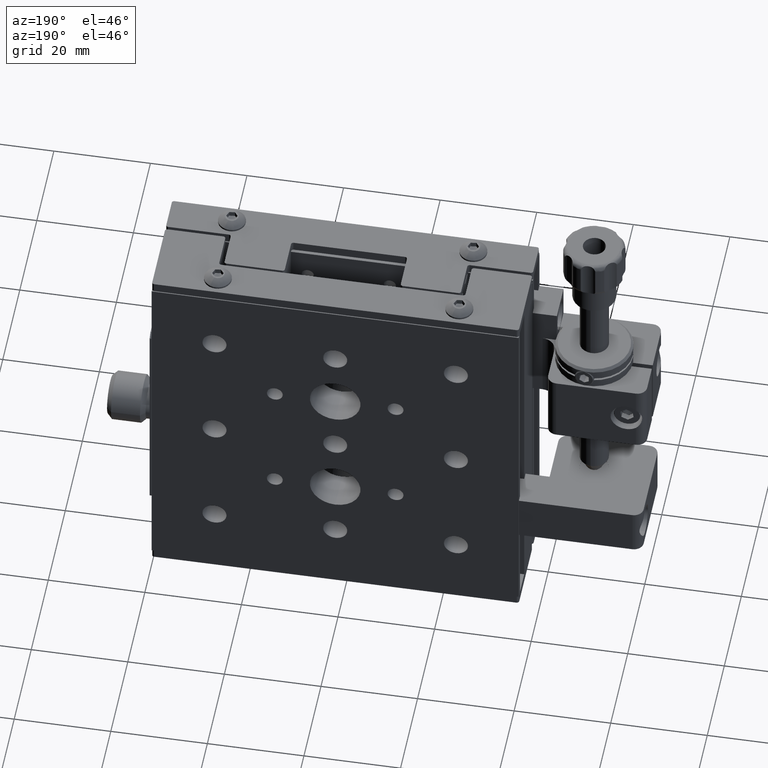
[diagram: clean part render]
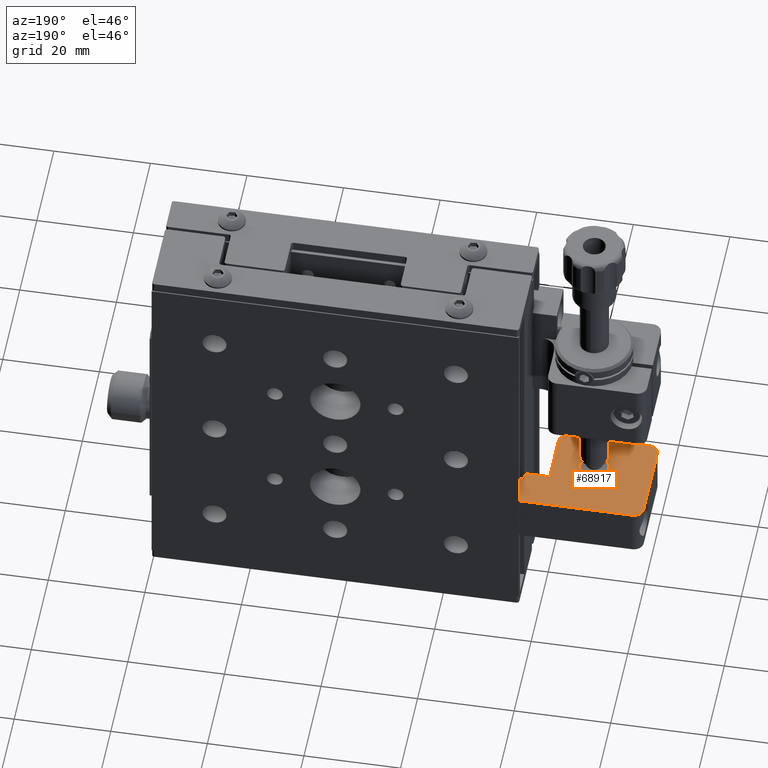
[diagram: same view with one face highlighted and labeled with its STEP entity id]
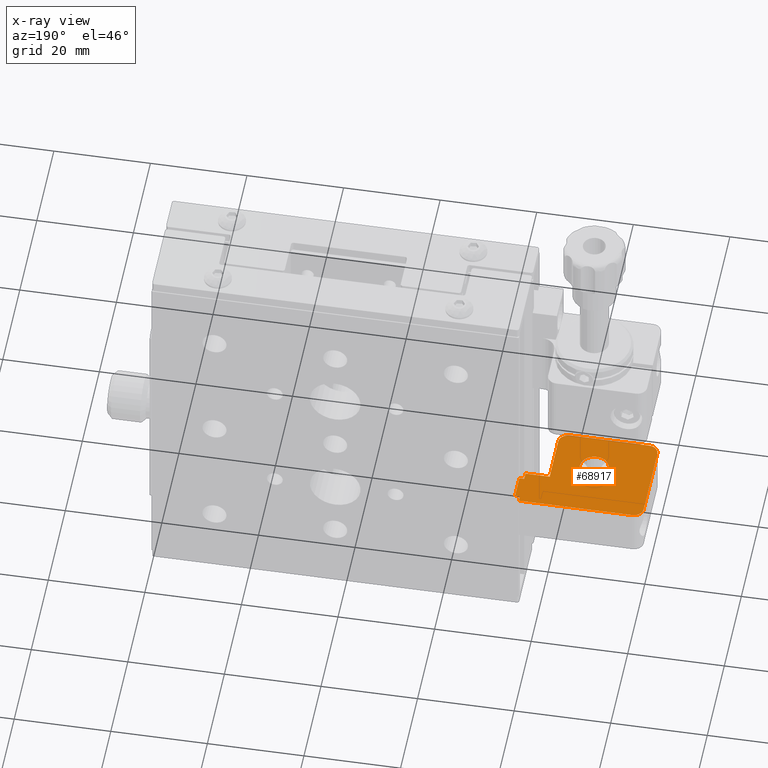
[diagram: x-ray of the same camera — body ghosted, the highlighted face saturated]
A machine part, auxiliary view. The second image highlights one B-rep face of the part: STEP entity #68917.
The next image is the same camera in x-ray: the body ghosted, the highlighted face saturated — about 1% of this face is hidden behind the body in this view.
In plain terms, the highlighted planar face has unit normal (-0, -0, 1).
Its self-contained STEP definition (entity closure, byte-faithful):
#762 = CARTESIAN_POINT ( 'NONE',  ( -21.29442417223149100, 5.606442215610566200, 101.1000000000000500 ) ) ;
#1313 = CIRCLE ( 'NONE', #5059, 1.999999999999994900 ) ;
#2289 = ORIENTED_EDGE ( 'NONE', *, *, #43231, .F. ) ;
#2669 = AXIS2_PLACEMENT_3D ( 'NONE', #48181, #14084, #65845 ) ;
#2849 = AXIS2_PLACEMENT_3D ( 'NONE', #49611, #61058, #26977 ) ;
#4611 = ORIENTED_EDGE ( 'NONE', *, *, #54387, .T. ) ;
#5059 = AXIS2_PLACEMENT_3D ( 'NONE', #63812, #18260, #6259 ) ;
#5143 = CARTESIAN_POINT ( 'NONE',  ( -39.79442417223148700, 13.40644221561057500, 101.1000000000000500 ) ) ;
#5286 = DIRECTION ( 'NONE',  ( -1.000000000000000000, -1.203058634489234800E-016, -2.289316593276503000E-017 ) ) ;
#5798 = CARTESIAN_POINT ( 'NONE',  ( -16.29442417223157600, 13.40644221561057800, 101.1000000000000500 ) ) ;
#6259 = DIRECTION ( 'NONE',  ( -1.000000000000000000, 0.0000000000000000000, 0.0000000000000000000 ) ) ;
#8567 = VERTEX_POINT ( 'NONE', #52880 ) ;
#8688 = VECTOR ( 'NONE', #58439, 1000.000000000000000 ) ;
#9293 = CARTESIAN_POINT ( 'NONE',  ( -39.79442417223148700, 11.40644221561057500, 101.1000000000000500 ) ) ;
#9618 = CARTESIAN_POINT ( 'NONE',  ( -39.79442417223154400, -6.593557784389425100, 101.1000000000000500 ) ) ;
#9909 = EDGE_CURVE ( 'NONE', #12584, #32054, #48946, .T. ) ;
#10613 = DIRECTION ( 'NONE',  ( -1.000000000000000000, -1.203058634489234800E-016, -2.289316593276503000E-017 ) ) ;
#10917 = CARTESIAN_POINT ( 'NONE',  ( -41.79442417223148700, 11.40644221561057500, 101.1000000000000500 ) ) ;
#11546 = EDGE_CURVE ( 'NONE', #53322, #53839, #13589, .T. ) ;
#12584 = VERTEX_POINT ( 'NONE', #68670 ) ;
#12651 = VERTEX_POINT ( 'NONE', #10917 ) ;
#13093 = CARTESIAN_POINT ( 'NONE',  ( -26.79442417223154700, 1.406442215610577100, 101.1000000000000500 ) ) ;
#13196 = AXIS2_PLACEMENT_3D ( 'NONE', #71817, #37426, #32451 ) ;
#13589 = LINE ( 'NONE', #62833, #41177 ) ;
#14084 = DIRECTION ( 'NONE',  ( -2.289316593276503000E-017, -2.754182094620802100E-033, 1.000000000000000000 ) ) ;
#14371 = ORIENTED_EDGE ( 'NONE', *, *, #60694, .T. ) ;
#16206 = LINE ( 'NONE', #5798, #41124 ) ;
#16711 = ORIENTED_EDGE ( 'NONE', *, *, #41689, .T. ) ;
#16778 = VERTEX_POINT ( 'NONE', #30400 ) ;
#17244 = ORIENTED_EDGE ( 'NONE', *, *, #43122, .T. ) ;
#18007 = ORIENTED_EDGE ( 'NONE', *, *, #9909, .T. ) ;
#18260 = DIRECTION ( 'NONE',  ( -2.289316593276503000E-017, -2.754182094620802100E-033, 1.000000000000000000 ) ) ;
#18825 = CARTESIAN_POINT ( 'NONE',  ( -29.79442417223154700, 1.406442215610577100, 101.1000000000000500 ) ) ;
#19577 = DIRECTION ( 'NONE',  ( -2.289316593276503000E-017, -2.754182094620802100E-033, 1.000000000000000000 ) ) ;
#20556 = EDGE_CURVE ( 'NONE', #8567, #27158, #46338, .T. ) ;
#21451 = VERTEX_POINT ( 'NONE', #33785 ) ;
#21669 = CARTESIAN_POINT ( 'NONE',  ( -16.29442417223148000, 7.106442215610568000, 101.1000000000000500 ) ) ;
#23547 = CARTESIAN_POINT ( 'NONE',  ( -23.29442417223155100, -6.593557784389434900, 101.1000000000000500 ) ) ;
#24128 = ORIENTED_EDGE ( 'NONE', *, *, #30454, .T. ) ;
#24495 = EDGE_CURVE ( 'NONE', #12651, #30850, #49113, .T. ) ;
#24516 = CARTESIAN_POINT ( 'NONE',  ( -21.29442417223154700, -4.593557784389422400, 101.1000000000000500 ) ) ;
#25308 = VECTOR ( 'NONE', #51707, 1000.000000000000000 ) ;
#25754 = PLANE ( 'NONE',  #13196 ) ;
#26012 = DIRECTION ( 'NONE',  ( -1.000000000000000000, 0.0000000000000000000, 0.0000000000000000000 ) ) ;
#26579 = ORIENTED_EDGE ( 'NONE', *, *, #32108, .T. ) ;
#26787 = VERTEX_POINT ( 'NONE', #762 ) ;
#26839 = LINE ( 'NONE', #71070, #64266 ) ;
#26977 = DIRECTION ( 'NONE',  ( -1.000000000000000000, -1.445602896647341400E-016, 0.0000000000000000000 ) ) ;
#27158 = VERTEX_POINT ( 'NONE', #13093 ) ;
#28527 = VERTEX_POINT ( 'NONE', #33250 ) ;
#30400 = CARTESIAN_POINT ( 'NONE',  ( -15.29442417223157900, 7.106442215610568000, 101.1000000000000500 ) ) ;
#30454 = EDGE_CURVE ( 'NONE', #44228, #68824, #73410, .T. ) ;
#30708 = LINE ( 'NONE', #72433, #50282 ) ;
#30850 = VERTEX_POINT ( 'NONE', #50606 ) ;
#31268 = VECTOR ( 'NONE', #69553, 1000.000000000000000 ) ;
#31789 = EDGE_LOOP ( 'NONE', ( #54662, #26579, #24128, #14371, #40248, #52337, #45076, #17244, #18007, #42183, #4611, #16711, #47418 ) ) ;
#32054 = VERTEX_POINT ( 'NONE', #61462 ) ;
#32108 = EDGE_CURVE ( 'NONE', #21451, #44228, #45455, .T. ) ;
#32451 = DIRECTION ( 'NONE',  ( -1.000000000000000000, -1.203058634489234800E-016, -2.289316593276503000E-017 ) ) ;
#32785 = ORIENTED_EDGE ( 'NONE', *, *, #20556, .F. ) ;
#32793 = CARTESIAN_POINT ( 'NONE',  ( -21.29442417223154700, -4.593557784389422400, 101.1000000000000500 ) ) ;
#33034 = LINE ( 'NONE', #24516, #31268 ) ;
#33250 = CARTESIAN_POINT ( 'NONE',  ( -16.29442417223157600, 13.40644221561057800, 101.1000000000000500 ) ) ;
#33758 = VECTOR ( 'NONE', #10613, 1000.000000000000000 ) ;
#33785 = CARTESIAN_POINT ( 'NONE',  ( -39.79442417223154400, -6.593557784389425100, 101.1000000000000500 ) ) ;
#34758 = CARTESIAN_POINT ( 'NONE',  ( -15.29442417223157900, 7.106442215610568000, 101.1000000000000500 ) ) ;
#35255 = CARTESIAN_POINT ( 'NONE',  ( -15.29442417223158800, 12.10644221561056700, 101.1000000000000500 ) ) ;
#35548 = EDGE_CURVE ( 'NONE', #26787, #53322, #26839, .T. ) ;
#37426 = DIRECTION ( 'NONE',  ( -2.289316593276503000E-017, -2.754182094620802400E-033, 1.000000000000000000 ) ) ;
#39006 = CARTESIAN_POINT ( 'NONE',  ( -15.29442417223158800, 12.10644221561056700, 101.1000000000000500 ) ) ;
#40248 = ORIENTED_EDGE ( 'NONE', *, *, #35548, .T. ) ;
#40301 = CARTESIAN_POINT ( 'NONE',  ( -16.29442417223155100, 5.606442215610567100, 101.1000000000000500 ) ) ;
#40729 = LINE ( 'NONE', #35255, #8688 ) ;
#41124 = VECTOR ( 'NONE', #5286, 1000.000000000000000 ) ;
#41177 = VECTOR ( 'NONE', #56870, 1000.000000000000000 ) ;
#41323 = LINE ( 'NONE', #34758, #25308 ) ;
#41689 = EDGE_CURVE ( 'NONE', #45360, #12651, #53213, .T. ) ;
#42183 = ORIENTED_EDGE ( 'NONE', *, *, #45204, .T. ) ;
#43122 = EDGE_CURVE ( 'NONE', #16778, #12584, #40729, .T. ) ;
#43231 = EDGE_CURVE ( 'NONE', #27158, #8567, #49687, .T. ) ;
#44228 = VERTEX_POINT ( 'NONE', #23547 ) ;
#45076 = ORIENTED_EDGE ( 'NONE', *, *, #45575, .T. ) ;
#45204 = EDGE_CURVE ( 'NONE', #32054, #28527, #30708, .T. ) ;
#45360 = VERTEX_POINT ( 'NONE', #5143 ) ;
#45455 = LINE ( 'NONE', #9618, #62415 ) ;
#45575 = EDGE_CURVE ( 'NONE', #53839, #16778, #41323, .T. ) ;
#46338 = CIRCLE ( 'NONE', #2849, 2.999999999999995600 ) ;
#47418 = ORIENTED_EDGE ( 'NONE', *, *, #24495, .T. ) ;
#48181 = CARTESIAN_POINT ( 'NONE',  ( -23.29442417223155100, -4.593557784389422400, 101.1000000000000500 ) ) ;
#48759 = DIRECTION ( 'NONE',  ( 1.000000000000000000, 1.203058634489234800E-016, 2.289316593276503000E-017 ) ) ;
#48946 = LINE ( 'NONE', #39006, #33758 ) ;
#49113 = LINE ( 'NONE', #51407, #66050 ) ;
#49611 = CARTESIAN_POINT ( 'NONE',  ( -29.79442417223154700, 1.406442215610577100, 101.1000000000000500 ) ) ;
#49687 = CIRCLE ( 'NONE', #56702, 2.999999999999995600 ) ;
#50282 = VECTOR ( 'NONE', #60736, 1000.000000000000000 ) ;
#50606 = CARTESIAN_POINT ( 'NONE',  ( -41.79442417223154400, -4.593557784389425100, 101.1000000000000500 ) ) ;
#50883 = AXIS2_PLACEMENT_3D ( 'NONE', #9293, #60128, #26012 ) ;
#51407 = CARTESIAN_POINT ( 'NONE',  ( -41.79442417223148700, 11.40644221561057500, 101.1000000000000500 ) ) ;
#51575 = EDGE_CURVE ( 'NONE', #30850, #21451, #1313, .T. ) ;
#51707 = DIRECTION ( 'NONE',  ( 1.000000000000000000, 1.203058634489234800E-016, 2.289316593276503000E-017 ) ) ;
#52337 = ORIENTED_EDGE ( 'NONE', *, *, #11546, .T. ) ;
#52880 = CARTESIAN_POINT ( 'NONE',  ( -32.79442417223154400, 1.406442215610576700, 101.1000000000000500 ) ) ;
#53213 = CIRCLE ( 'NONE', #50883, 1.999999999999994900 ) ;
#53322 = VERTEX_POINT ( 'NONE', #40301 ) ;
#53839 = VERTEX_POINT ( 'NONE', #21669 ) ;
#54387 = EDGE_CURVE ( 'NONE', #28527, #45360, #16206, .T. ) ;
#54662 = ORIENTED_EDGE ( 'NONE', *, *, #51575, .T. ) ;
#56702 = AXIS2_PLACEMENT_3D ( 'NONE', #18825, #19577, #69894 ) ;
#56870 = DIRECTION ( 'NONE',  ( 4.729546914658370300E-014, 1.000000000000000000, 1.085497205135330200E-030 ) ) ;
#58439 = DIRECTION ( 'NONE',  ( -1.508084644230366200E-015, 1.000000000000000000, -3.177064990639987900E-032 ) ) ;
#60115 = EDGE_LOOP ( 'NONE', ( #32785, #2289 ) ) ;
#60128 = DIRECTION ( 'NONE',  ( -2.289316593276503000E-017, -2.754182094620802100E-033, 1.000000000000000000 ) ) ;
#60694 = EDGE_CURVE ( 'NONE', #68824, #26787, #33034, .T. ) ;
#60736 = DIRECTION ( 'NONE',  ( -1.203058634489235000E-016, 1.000000000000000000, 2.383456545434400400E-047 ) ) ;
#61058 = DIRECTION ( 'NONE',  ( -2.289316593276503000E-017, -2.754182094620802100E-033, 1.000000000000000000 ) ) ;
#61462 = CARTESIAN_POINT ( 'NONE',  ( -16.29442417223157600, 12.10644221561056700, 101.1000000000000500 ) ) ;
#61563 = FACE_BOUND ( 'NONE', #60115, .T. ) ;
#62415 = VECTOR ( 'NONE', #48759, 1000.000000000000000 ) ;
#62833 = CARTESIAN_POINT ( 'NONE',  ( -16.29442417223155100, 5.606442215610567100, 101.1000000000000500 ) ) ;
#63812 = CARTESIAN_POINT ( 'NONE',  ( -39.79442417223154400, -4.593557784389418000, 101.1000000000000500 ) ) ;
#64266 = VECTOR ( 'NONE', #65097, 1000.000000000000000 ) ;
#65097 = DIRECTION ( 'NONE',  ( 1.000000000000000000, 1.203058634489234800E-016, 2.289316593276503000E-017 ) ) ;
#65845 = DIRECTION ( 'NONE',  ( -1.000000000000000000, 0.0000000000000000000, 0.0000000000000000000 ) ) ;
#66050 = VECTOR ( 'NONE', #68860, 1000.000000000000000 ) ;
#68670 = CARTESIAN_POINT ( 'NONE',  ( -15.29442417223158800, 12.10644221561056700, 101.1000000000000500 ) ) ;
#68824 = VERTEX_POINT ( 'NONE', #32793 ) ;
#68860 = DIRECTION ( 'NONE',  ( -3.457561305753229100E-015, -1.000000000000000000, -8.190870678993728800E-032 ) ) ;
#68917 = ADVANCED_FACE ( 'NONE', ( #61563, #71377 ), #25754, .T. ) ;
#69553 = DIRECTION ( 'NONE',  ( 5.492034794123093700E-015, 1.000000000000000000, 1.284842459449998300E-031 ) ) ;
#69894 = DIRECTION ( 'NONE',  ( -1.000000000000000000, -1.445602896647341400E-016, 0.0000000000000000000 ) ) ;
#71070 = CARTESIAN_POINT ( 'NONE',  ( -16.29442417223155100, 5.606442215610567100, 101.1000000000000500 ) ) ;
#71377 = FACE_OUTER_BOUND ( 'NONE', #31789, .T. ) ;
#71817 = CARTESIAN_POINT ( 'NONE',  ( -39.79442417223154400, -4.593557784389418000, 101.1000000000000500 ) ) ;
#72433 = CARTESIAN_POINT ( 'NONE',  ( -16.29442417223157600, 13.40644221561057800, 101.1000000000000500 ) ) ;
#73410 = CIRCLE ( 'NONE', #2669, 1.999999999999994900 ) ;